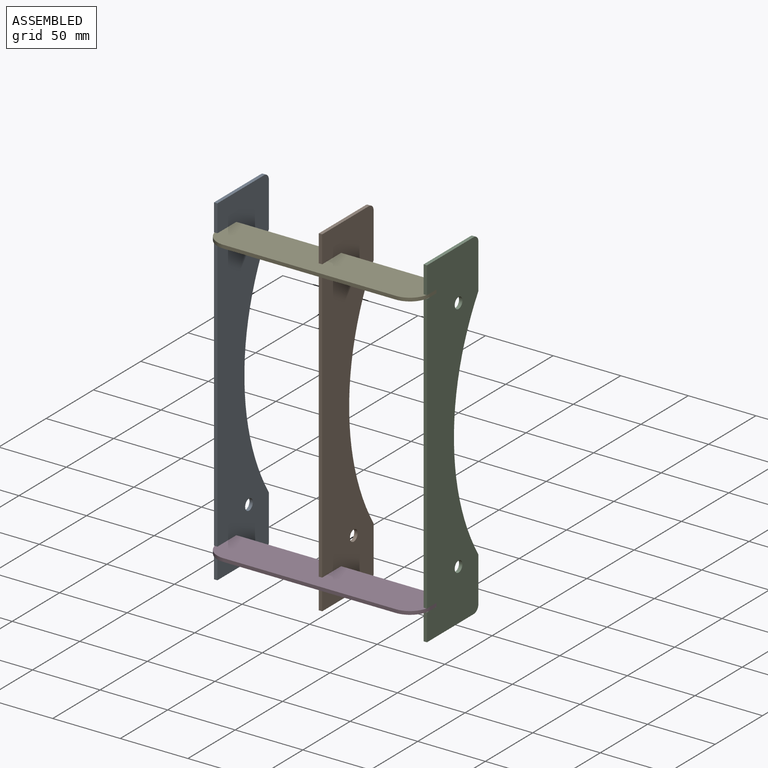
[diagram: assembled view]
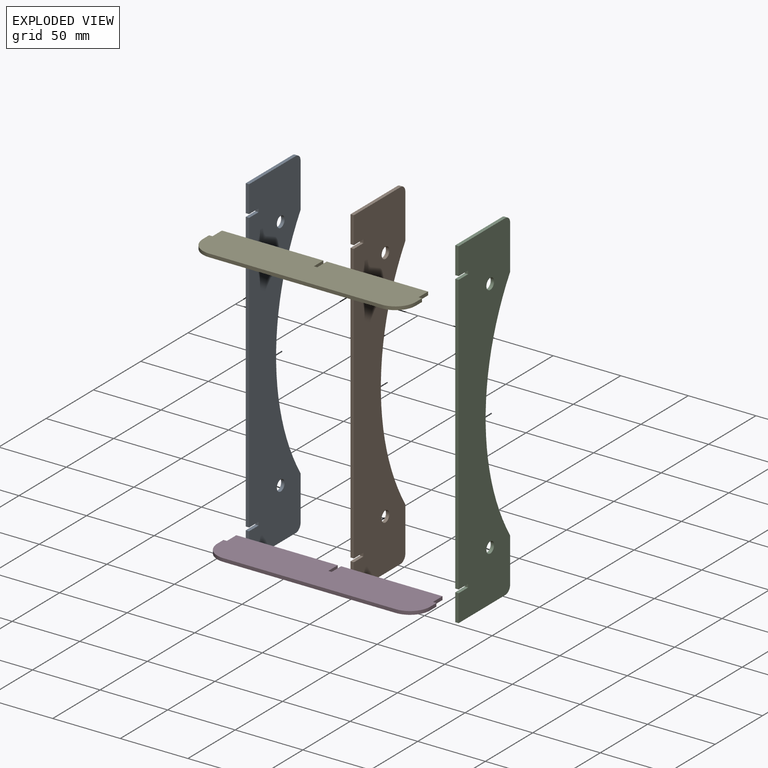
[diagram: exploded view]
GUIDED TOUR — FREECAD ASSEMBLY "Lasercut"

This assembly has 5 components, labeled P0..P4 below (a component is one placed body or linked part; the same part can appear more than once), held together by 6 modeled joints. A joint is a constraint between two components; its type names the relative motion it leaves free:
  FASTENED — locks the two components together rigidly (no relative motion).
Axis/direction vectors are unit vectors and 'through' points are millimeter coordinates, both in the assembly's world frame.

MATES
  1. FASTENED [Fixed] "Joint": P3 <-> P0, direction (0.000, 1.000, 0.000) through (-77.50, 21.50, 0.00) mm
  2. FASTENED [Fixed] "Joint001": P3 <-> P1, direction (0.000, 1.000, 0.000) through (0.00, 21.50, 0.00) mm
  3. FASTENED [Fixed] "Joint002": P2 <-> P3, direction (0.000, 1.000, 0.000) through (77.50, 21.50, 0.00) mm
  4. FASTENED [Fixed] "Joint003": P2 <-> P4, direction (0.000, 1.000, 0.000) through (77.50, 21.50, 209.50) mm
  5. FASTENED [Fixed] "Joint004": P1 <-> P4, direction (0.000, 1.000, 0.000) through (0.00, 21.50, 209.50) mm
  6. FASTENED [Fixed] "Joint005": P4 <-> P0, direction (0.000, 1.000, 0.000) through (-77.50, 21.50, 209.50) mm

ASSEMBLY ORDER
  1. P2 — the base component [order verified]
  2. P0 [order verified]
  3. P1 [order verified]
  4. P4 [order verified]
  5. P3 [order verified]
Order-tag legend:
  [order verified] — this step's position reverses a verified removal order: the component was checked to insert without passing through the ones already placed.

Of the 5 components, 5 carry a construction recipe — the FreeCAD feature program (sketches with constraints, then the solid features that consume them) that regenerates the part from scratch, quoted from this document or from the linked companion document it references; the rest are supplied as boundary geometry only. The tour below walks the components in assembly order: each is shown spotlighted twice — in the assembled view, then in the exploded view, where a leader line traces a displaced component back to its assembled socket (components that stay in place when exploded have no leader line; saturated green if recipe-attached, orange if geometry-only; every other component desaturated gray) — followed by its recipe or geometry summary and the mates that hold it.
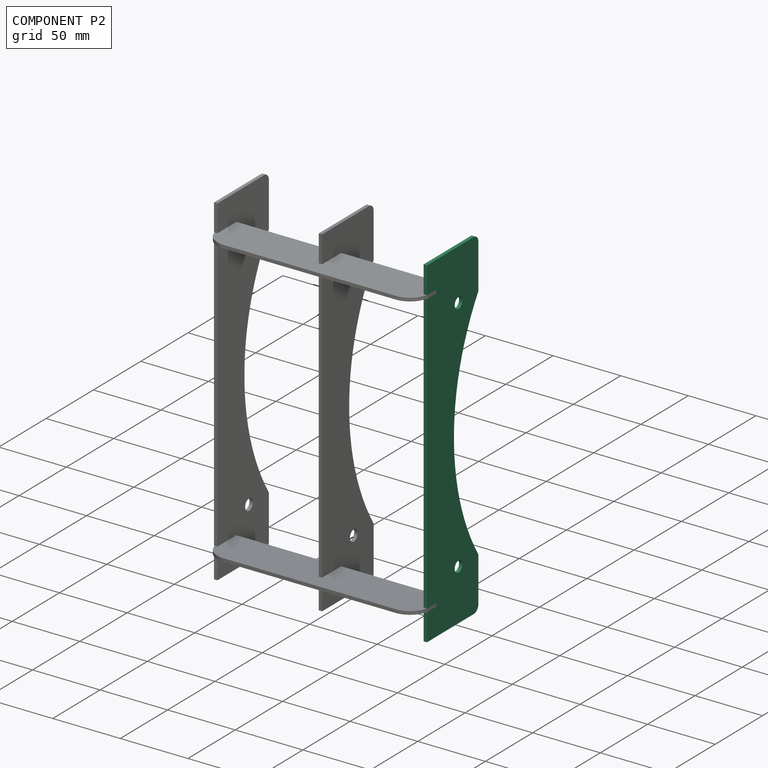
[diagram: component P2 — assembled]
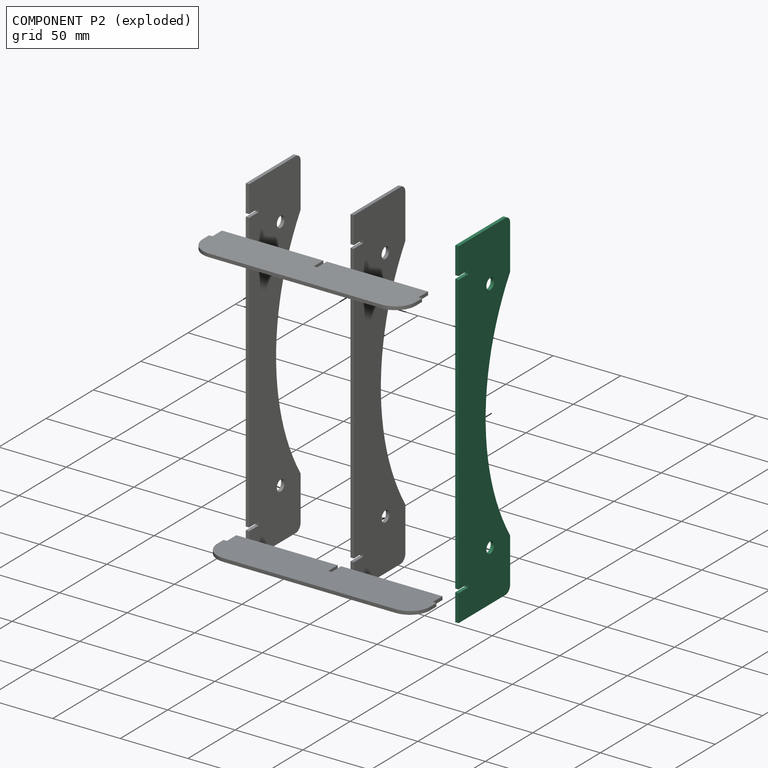
[diagram: component P2 — exploded]
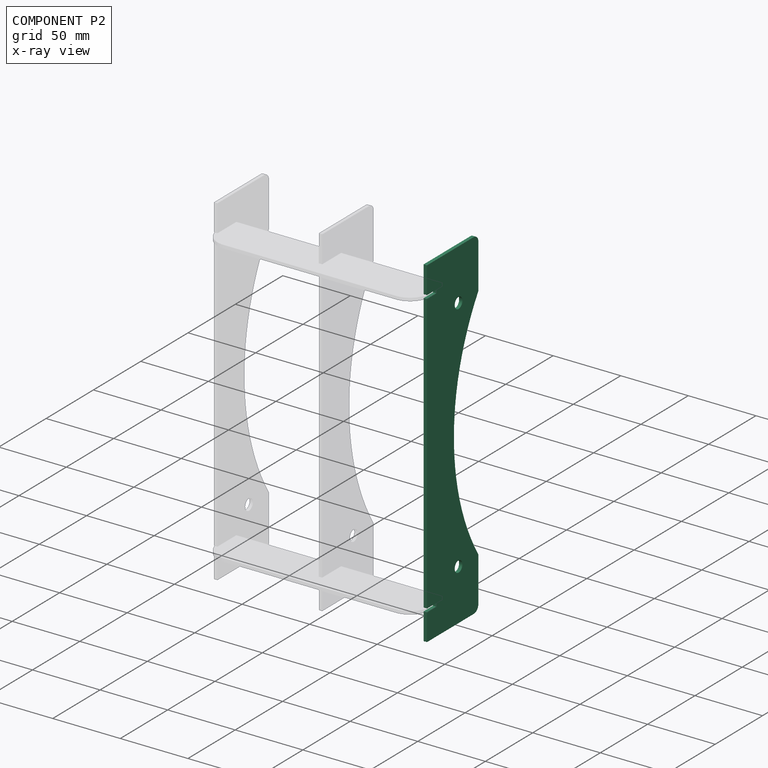
[diagram: component P2 — x-ray view]
COMPONENT P2 — same part as P0; its construction recipe is shown at P0.
Held by: FASTENED mate "Joint002" to P3; FASTENED mate "Joint003" to P4.
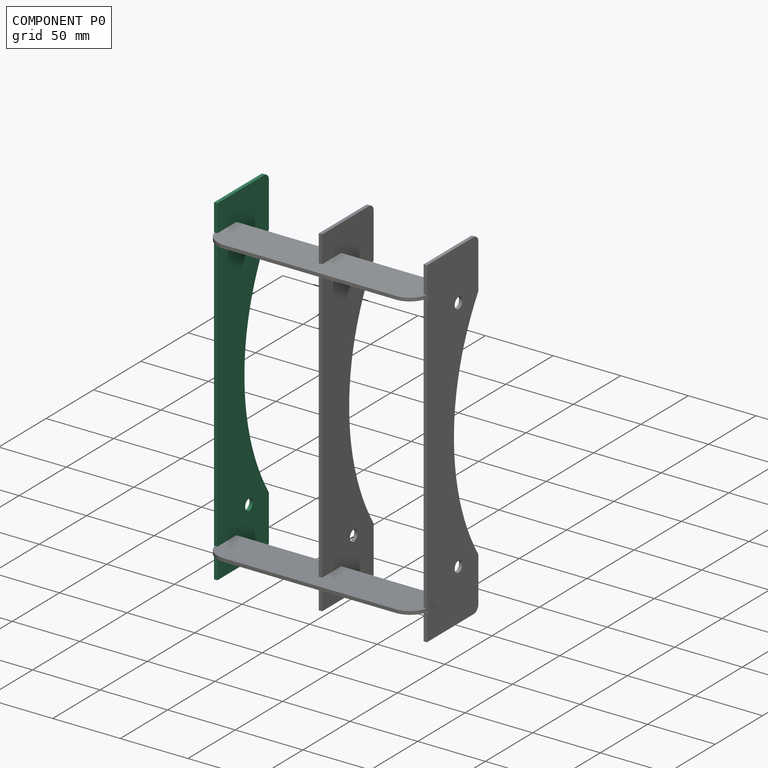
[diagram: component P0 — assembled]
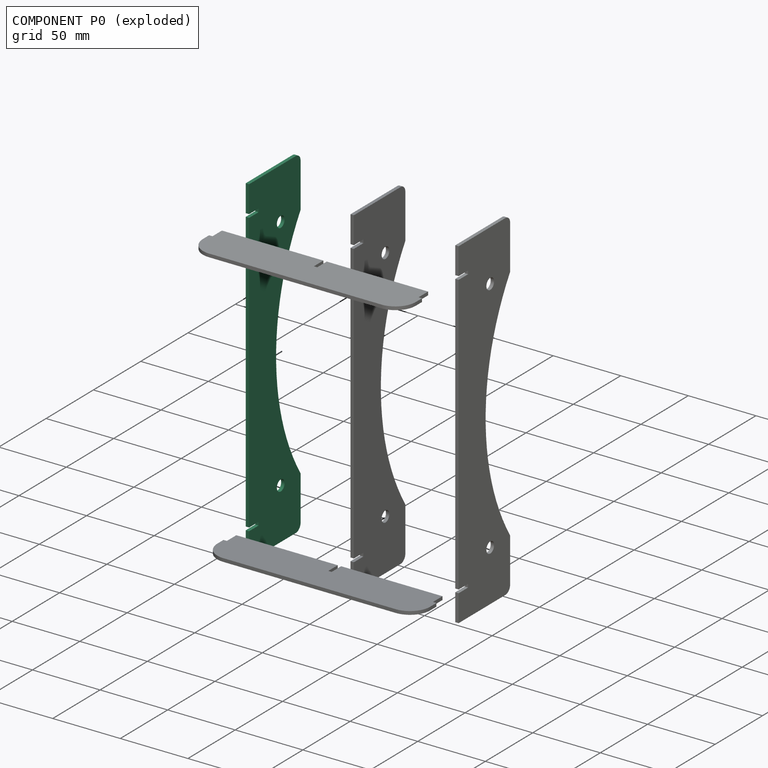
[diagram: component P0 — exploded]
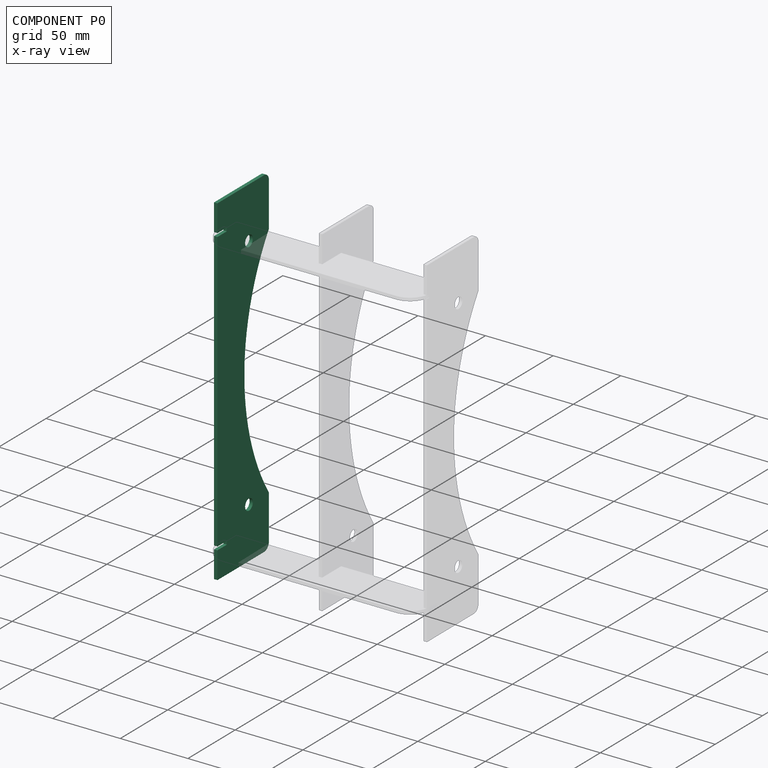
[diagram: component P0 — x-ray view]
COMPONENT P0 — recipe-attached ("GuardBody001", modeled in this document).
Held by: FASTENED mate "Joint" to P3; FASTENED mate "Joint005" to P4.
Construction recipe (the document's own serialized feature program — sketch geometry with constraints, then the solid features built on it; lengths are millimeters unless a unit is written):

FEATURE [Sketcher::SketchObject] Sketch001
  ArcFitTolerance = 1e-06
  AttachmentSupport = -> [YZ_Plane]
  ExternalGeometry = -> [BaseFeature]
  FullyConstrained = true
  MakeInternals = false
  MapMode = 5
  Placement = pos=(0,0,0) rot=(0.57735,0.57735,0.57735;2.0944rad)
  expr: Constraints[52] = <<config>>.dist
  expr: Constraints[55] = <<config>>.depth + <<config>>.clearance
  expr: Constraints[56] = <<config>>.thickness + <<config>>.clearance
  sketch-geometry (34):
    g0: Circle CenterX=44.8725 CenterY=88.1275 CenterZ=0 NormalX=0 NormalY=0 NormalZ=1 AngleXU=0 Radius=4.05
    g1: Circle CenterX=44.8725 CenterY=-88.1275 CenterZ=0 NormalX=0 NormalY=0 NormalZ=1 AngleXU=0 Radius=4.05
    g2: LineSegment [constr] StartX=50.8725 StartY=-126 StartZ=0 EndX=50.8725 EndY=120 EndZ=0
    g3: LineSegment [constr] StartX=50.8725 StartY=120 StartZ=0 EndX=11.5 EndY=120 EndZ=0
    g4: LineSegment StartX=50.8725 StartY=-126 StartZ=0 EndX=11.5 EndY=-126 EndZ=0
    g5: LineSegment [constr] StartX=50.8725 StartY=120 StartZ=0 EndX=65.8725 EndY=120 EndZ=0
    g6: LineSegment StartX=60.8725 StartY=-126 StartZ=0 EndX=50.8725 EndY=-126 EndZ=0
    g7: LineSegment StartX=65.8725 StartY=120 StartZ=0 EndX=65.8725 EndY=88.1275 EndZ=0
    g8: LineSegment [constr] StartX=65.8725 StartY=88.1275 StartZ=0 EndX=65.8725 EndY=-88.1275 EndZ=0
    g9: ArcOfCircle CenterX=203.027 CenterY=2.02e-14 CenterZ=0 NormalX=0 NormalY=0 NormalZ=1 AngleXU=0 Radius=163.027 StartAngle=2.57048 EndAngle=3.71271
    g10: LineSegment StartX=65.8725 StartY=-88.1275 StartZ=0 EndX=65.8725 EndY=-120 EndZ=0
    g11: LineSegment StartX=65.8725 StartY=-120 StartZ=0 EndX=65.8725 EndY=-121 EndZ=0
    g12: LineSegment [constr] StartX=11.5 StartY=-120 StartZ=0 EndX=65.8725 EndY=-120 EndZ=0
    g13: LineSegment [constr] StartX=65.8725 StartY=88.1275 StartZ=0 EndX=44.8725 EndY=88.1275 EndZ=0
    g14: GeomPoint [constr] X=40 Y=0 Z=0
    g15: GeomPoint [constr] X=65.8725 Y=120 Z=0
    g16: ArcOfCircle CenterX=60.8725 CenterY=-121 CenterZ=0 NormalX=0 NormalY=0 NormalZ=1 AngleXU=0 Radius=5 StartAngle=4.71239 EndAngle=6.28319
    g17: GeomPoint [constr] X=65.8725 Y=-126 Z=0
    g18: LineSegment StartX=11.5 StartY=106 StartZ=0 EndX=21.5 EndY=106 EndZ=0
    g19: LineSegment StartX=21.5 StartY=106 StartZ=0 EndX=21.5 EndY=103.5 EndZ=0
    g20: LineSegment StartX=21.5 StartY=103.5 StartZ=0 EndX=11.5 EndY=103.5 EndZ=0
    g21: LineSegment StartX=11.5 StartY=-103.5 StartZ=0 EndX=21.5 EndY=-103.5 EndZ=0
    g22: LineSegment StartX=21.5 StartY=-103.5 StartZ=0 EndX=21.5 EndY=-106 EndZ=0
    g23: LineSegment StartX=21.5 StartY=-106 StartZ=0 EndX=11.5 EndY=-106 EndZ=0
    g24: LineSegment StartX=11.5 StartY=120 StartZ=0 EndX=11.5 EndY=106 EndZ=0
    g25: LineSegment [constr] StartX=11.5 StartY=106 StartZ=0 EndX=11.5 EndY=103.5 EndZ=0
    g26: LineSegment StartX=11.5 StartY=103.5 StartZ=0 EndX=11.5 EndY=-103.5 EndZ=0
    g27: LineSegment [constr] StartX=11.5 StartY=-103.5 StartZ=0 EndX=11.5 EndY=-106 EndZ=0
    g28: LineSegment StartX=11.5 StartY=-106 StartZ=0 EndX=11.5 EndY=-126 EndZ=0
    g29: LineSegment StartX=11.5 StartY=120 StartZ=0 EndX=11.5 EndY=126 EndZ=0
    g30: LineSegment StartX=11.5 StartY=126 StartZ=0 EndX=60.8725 EndY=126 EndZ=0
    g31: LineSegment StartX=65.8725 StartY=121 StartZ=0 EndX=65.8725 EndY=120 EndZ=0
    g32: ArcOfCircle CenterX=60.8725 CenterY=121 CenterZ=0 NormalX=0 NormalY=0 NormalZ=1 AngleXU=0 Radius=5 StartAngle=8e-16 EndAngle=1.5708
    g33: GeomPoint [constr] X=65.8725 Y=126 Z=0
  constraints (88):
    c: Coincident(g0,g-3)
    c: PointOnObject(g-3,g0)
    c: Coincident(g1,g-4)
    c: PointOnObject(g-4,g1)
    c: Coincident(g2,g3)
    c: Coincident(g3,g24)
    c: Vertical(g2)
    c: Horizontal(g3)
    c: Coincident(g24,g-7)
    c: Horizontal(g4)
    c: PointOnObject(g-5,g2)
    c: Coincident(g2,g4)
    c: Coincident(g28,g4)
    c: DistanceY(g28,g-8) = 6
    c: Coincident(g2,g5)
    c: Horizontal(g5)
    c: Coincident(g6,g2)
    c: Horizontal(g6)
    c: Coincident(g7,g8)
    c: Vertical(g7)
    c: Coincident(g8,g10)
    c: Vertical(g8)
    c: Coincident(g9,g7)
    c: Coincident(g9,g8)
    c: Coincident(g10,g11)
    c: Vertical(g10)
    c: Vertical(g11)
    c: Coincident(g12,g-8)
    c: Coincident(g12,g10)
    c: Horizontal(g12)
    c: DistanceX(g5,g15) = 15
    c: Coincident(g13,g7)
    c: Coincident(g13,g0)
    c: Horizontal(g13)
    c: PointOnObject(g14,g-1)
    c: PointOnObject(g14,g9)
    c: DistanceX(g-1,g14) = 40
    c: PointOnObject(g17,g11)
    c: PointOnObject(g17,g6)
    c: Tangent(g11,g16) = 1.5708
    c: Tangent(g6,g16) = 1.5708
    c: Equal(g10,g7)
    c: Horizontal(g18)
    c: Coincident(g19,g18)
    c: Vertical(g19)
    c: Horizontal(g20)
    c: Coincident(g20,g19)
    c: Horizontal(g21)
    c: Coincident(g21,g22)
    c: Vertical(g22)
    c: Coincident(g22,g23)
    c: Horizontal(g23)
    c: DistanceY(g28,g23) = 20
    c: Equal(g19,g22)
    c: Equal(g21,g20)
    c: DistanceX(g18,g18) = 10
    c: DistanceY(g19,g19) = 2.5
    c: Coincident(g24,g25)
    c: Vertical(g24)
    c: PointOnObject(g18,g24)
    c: PointOnObject(g20,g24)
    c: Coincident(g25,g26)
    c: Vertical(g25)
    c: Coincident(g26,g27)
    c: Vertical(g26)
    c: Coincident(g27,g28)
    c: Vertical(g27)
    c: Vertical(g28)
    c: PointOnObject(g23,g27)
    c: PointOnObject(g26,g21)
    c: PointOnObject(g27,g23)
    c: PointOnObject(g25,g20)
    c: PointOnObject(g24,g18)
    c: Coincident(g5,g15)
    c: Coincident(g7,g5)
    c: Radius(g16) = 5
    c: Coincident(g3,g29)
    c: Coincident(g29,g30)
    c: Horizontal(g30)
    c: Coincident(g31,g5)
    c: Vertical(g31)
    c: PointOnObject(g33,g30)
    c: PointOnObject(g33,g31)
    c: Tangent(g30,g32) = 1.5708
    c: Tangent(g31,g32) = 1.5708
    c: Equal(g32,g16)
    c: Symmetric(g29,g4,g-1)
    c: Symmetric(g21,g20,g-1)
FEATURE [PartDesign::Pad] Pad
  Direction = (1,0,0)
  Length = 2.5
  Length2 = 10
  Midplane = true
  Placement = pos=(0,0,0) rot=(1,1,1;2.0944rad)
  Profile = -> Sketch001
  ReferenceAxis = -> Sketch001 [N_Axis]
  Refine = true
  Suppressed = false
  Type = 0
  expr: Length = <<config>>.thickness
FEATURE [PartDesign::Body] Body  label="GuardBody"
  AllowCompound = false
  Group = -> [Sketch001,Pad]
  Origin = -> Origin
  Tip = -> Pad
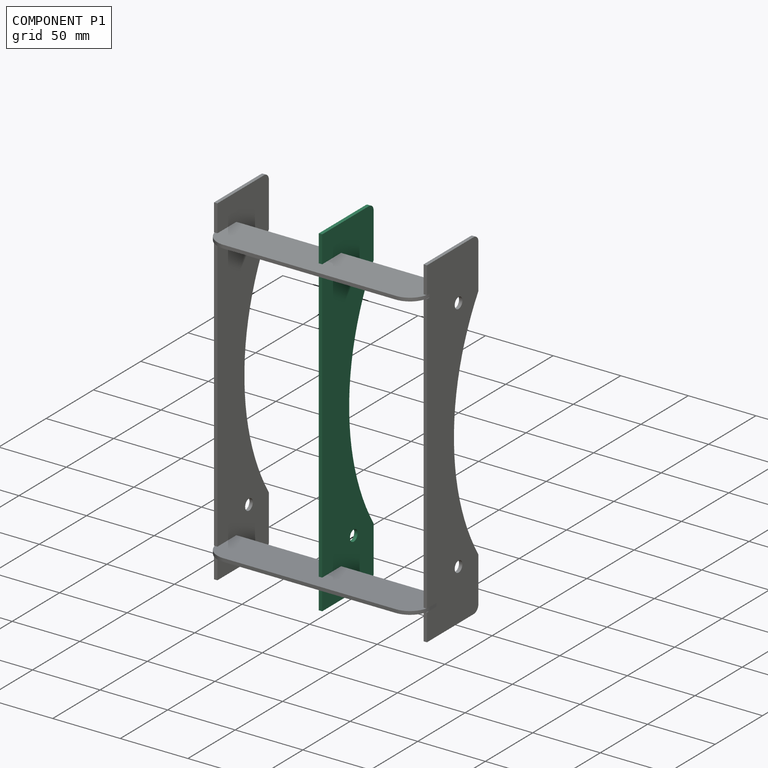
[diagram: component P1 — assembled]
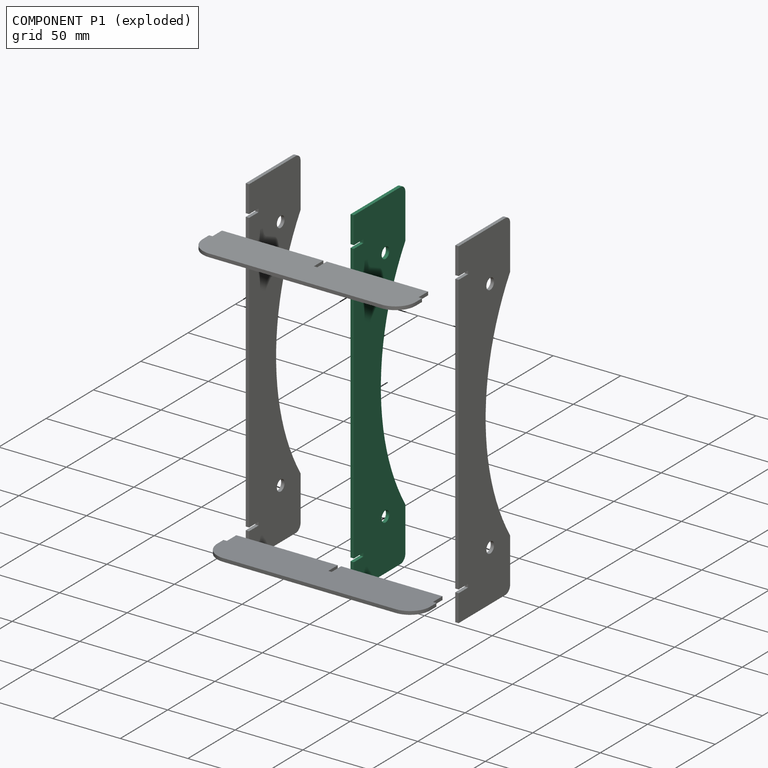
[diagram: component P1 — exploded]
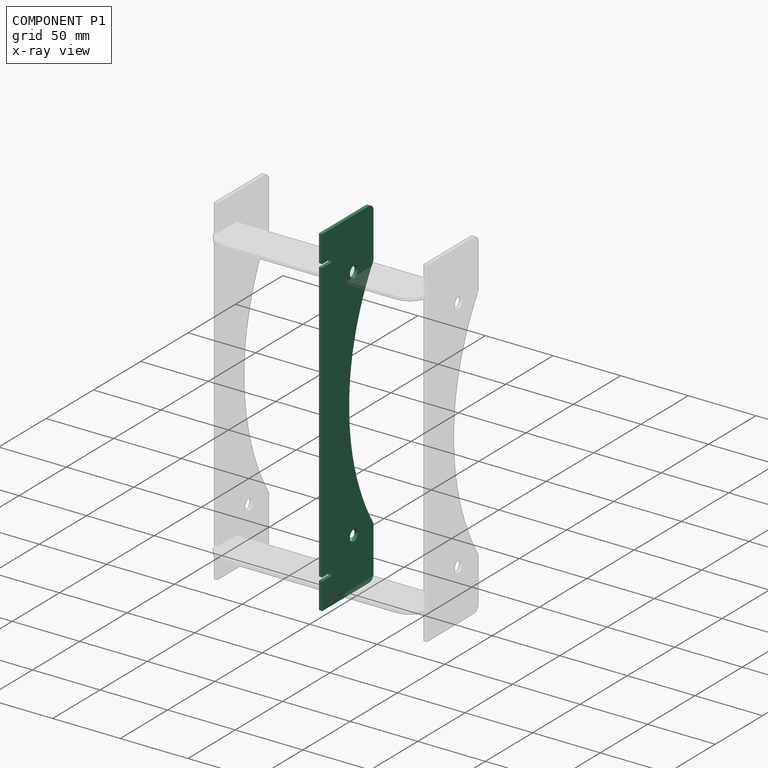
[diagram: component P1 — x-ray view]
COMPONENT P1 — same part as P0; its construction recipe is shown at P0.
Held by: FASTENED mate "Joint001" to P3; FASTENED mate "Joint004" to P4.
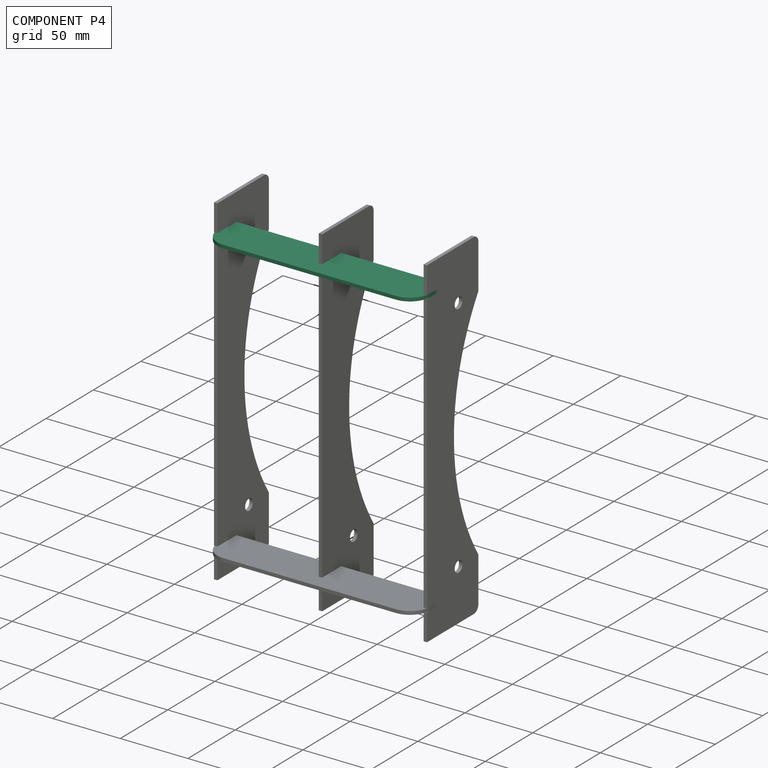
[diagram: component P4 — assembled]
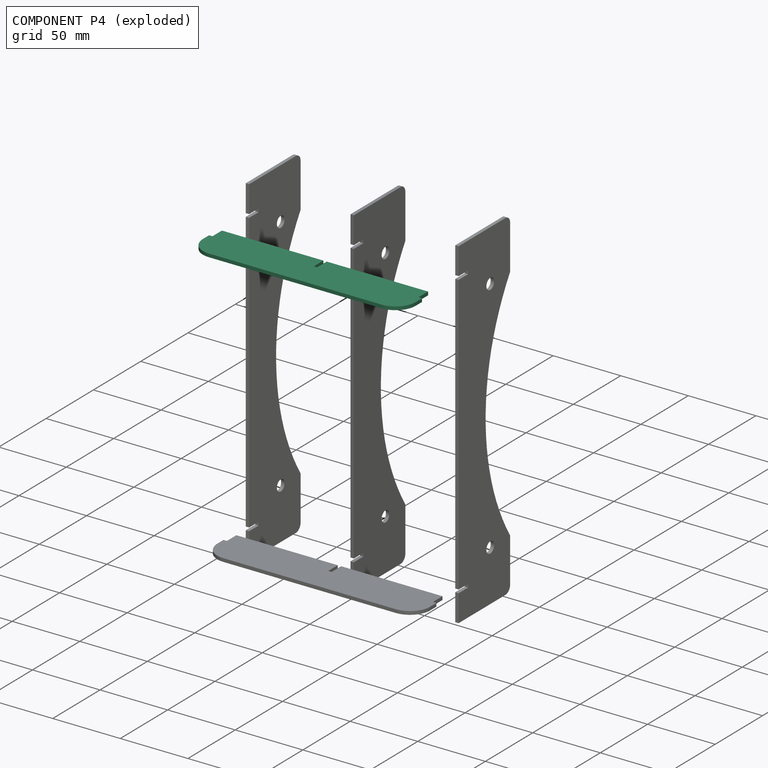
[diagram: component P4 — exploded]
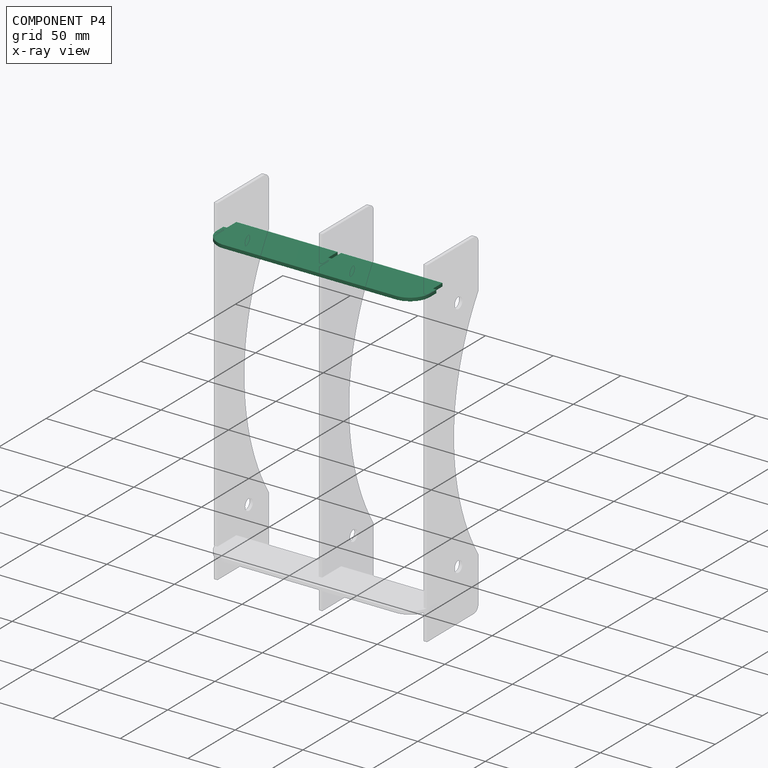
[diagram: component P4 — x-ray view]
COMPONENT P4 — same part as P3; its construction recipe is shown at P3.
Held by: FASTENED mate "Joint003" to P2; FASTENED mate "Joint004" to P1; FASTENED mate "Joint005" to P0.
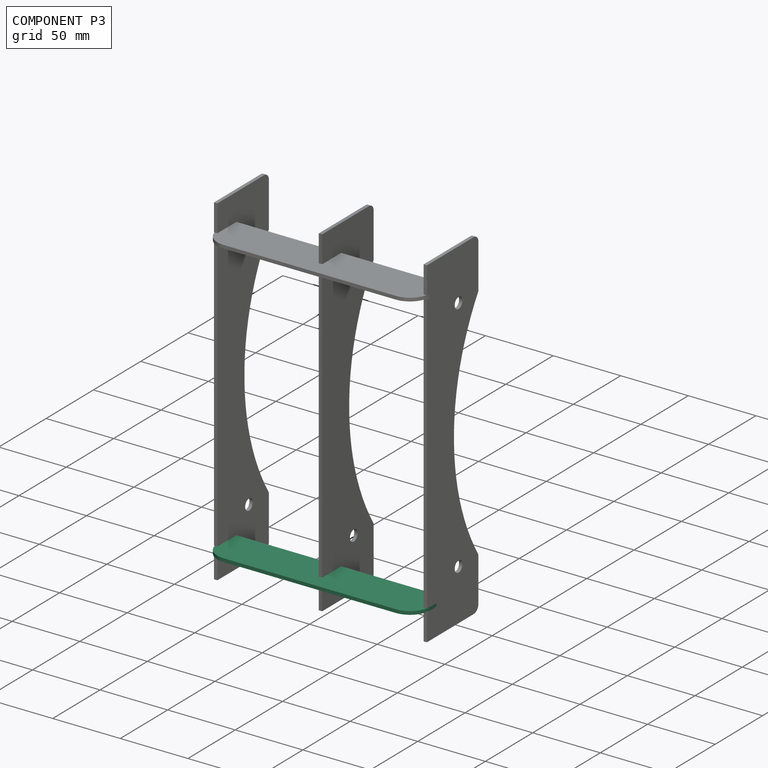
[diagram: component P3 — assembled]
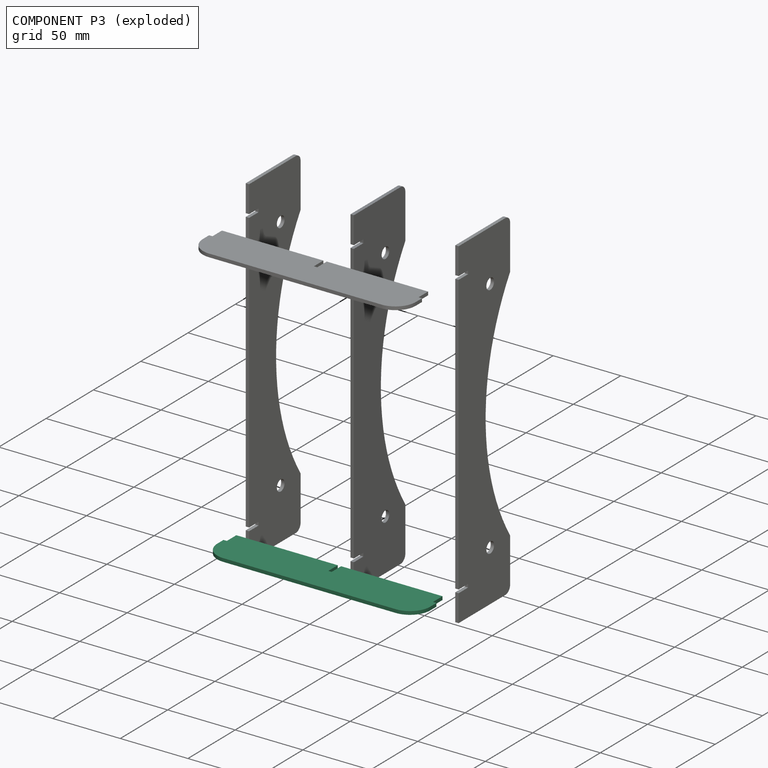
[diagram: component P3 — exploded]
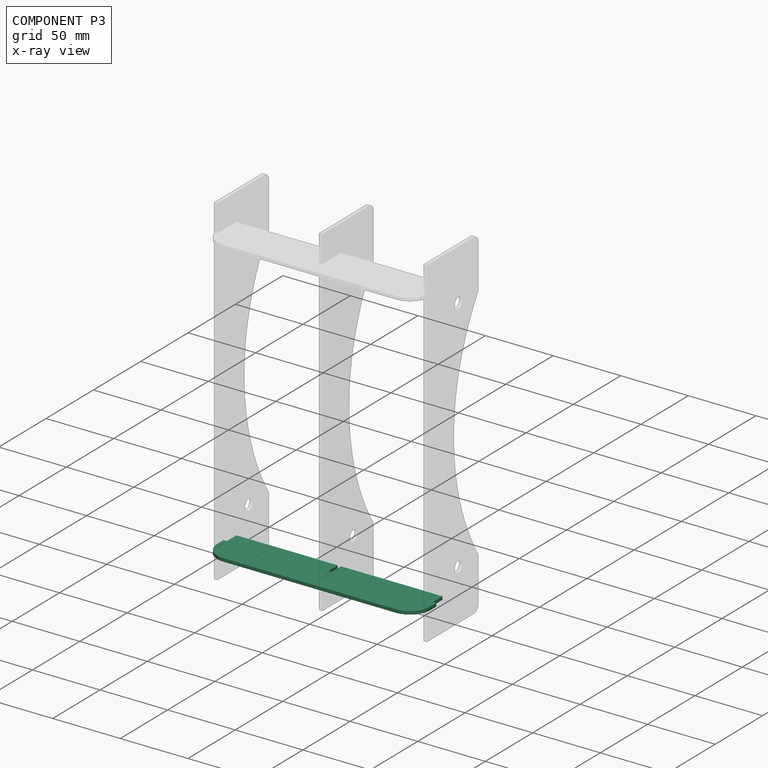
[diagram: component P3 — x-ray view]
COMPONENT P3 — recipe-attached ("JointBody001", modeled in this document).
Held by: FASTENED mate "Joint" to P0; FASTENED mate "Joint001" to P1; FASTENED mate "Joint002" to P2.
Construction recipe (the document's own serialized feature program — sketch geometry with constraints, then the solid features built on it; lengths are millimeters unless a unit is written):

FEATURE [PartDesign::SubShapeBinder] Binder
  BindCopyOnChange = 0
  BindMode = 0
  ClaimChildren = false
  Context = -> Body002 [Binder.]
  Fuse = false
  MakeFace = true
  OffsetFill = false
  OffsetIntersection = false
  OffsetJoinType = 0
  OffsetOpenResult = false
  PartialLoad = false
  Refine = true
  Relative = true
  Support = -> [Body]
  _Version = 2
FEATURE [Sketcher::SketchObject] Sketch002
  ArcFitTolerance = 1e-06
  AttachmentSupport = -> [XY_Plane]
  ExternalGeometry = -> [Binder]
  FullyConstrained = true
  MakeInternals = false
  MapMode = 5
  expr: Constraints[19] = <<config>>.thickness
  expr: Constraints[20] = <<config>>.depth
  expr: Constraints[31] = <<config>>.depth
  expr: Constraints[35] = <<config>>.roller_length + 2 * <<config>>.roller_clearance
  expr: Constraints[9] = <<config>>.thickness
  sketch-geometry (18):
    g0: LineSegment StartX=-63.75 StartY=0 StartZ=0 EndX=63.75 EndY=1.8e-15 EndZ=0
    g1: LineSegment StartX=1.25 StartY=21.5 StartZ=0 EndX=1.25 EndY=31.5 EndZ=0
    g2: LineSegment [constr] StartX=1.25 StartY=31.5 StartZ=0 EndX=-1.25 EndY=31.5 EndZ=0
    g3: LineSegment StartX=-1.25 StartY=31.5 StartZ=0 EndX=-1.25 EndY=21.5 EndZ=0
    g4: LineSegment StartX=-1.25 StartY=21.5 StartZ=0 EndX=1.25 EndY=21.5 EndZ=0
    g5: GeomPoint [constr] X=0 Y=26.5 Z=0
    g6: LineSegment StartX=-78.75 StartY=21.5 StartZ=0 EndX=-78.75 EndY=15 EndZ=0
    g7: LineSegment StartX=78.75 StartY=15 StartZ=0 EndX=78.75 EndY=21.5 EndZ=0
    g8: LineSegment StartX=-78.75 StartY=21.5 StartZ=0 EndX=-76.25 EndY=21.5 EndZ=0
    g9: LineSegment StartX=-76.25 StartY=21.5 StartZ=0 EndX=-76.25 EndY=31.5 EndZ=0
    g10: LineSegment StartX=76.25 StartY=31.5 StartZ=0 EndX=76.25 EndY=21.5 EndZ=0
    g11: LineSegment StartX=76.25 StartY=21.5 StartZ=0 EndX=78.75 EndY=21.5 EndZ=0
    g12: LineSegment StartX=1.25 StartY=31.5 StartZ=0 EndX=76.25 EndY=31.5 EndZ=0
    g13: LineSegment StartX=-1.25 StartY=31.5 StartZ=0 EndX=-76.25 EndY=31.5 EndZ=0
    g14: ArcOfCircle CenterX=-63.75 CenterY=15 CenterZ=0 NormalX=0 NormalY=0 NormalZ=1 AngleXU=0 Radius=15 StartAngle=3.14159 EndAngle=4.71239
    g15: GeomPoint [constr] X=-78.75 Y=0 Z=0
    g16: ArcOfCircle CenterX=63.75 CenterY=15 CenterZ=0 NormalX=0 NormalY=0 NormalZ=1 AngleXU=0 Radius=15 StartAngle=4.71239 EndAngle=6.28319
    g17: GeomPoint [constr] X=78.75 Y=0 Z=0
  constraints (46):
    c: Coincident(g1,g2)
    c: Coincident(g2,g3)
    c: Coincident(g3,g4)
    c: Coincident(g4,g1)
    c: Vertical(g1)
    c: Vertical(g3)
    c: Horizontal(g2)
    c: Horizontal(g4)
    c: Symmetric(g3,g1,g5)
    c: DistanceX(g4,g4) = 2.5
    c: Vertical(g6)
    c: Vertical(g7)
    c: Horizontal(g8)
    c: Coincident(g8,g9)
    c: Vertical(g9)
    c: Vertical(g10)
    c: Coincident(g10,g11)
    c: Coincident(g11,g7)
    c: Horizontal(g11)
    c: DistanceX(g11,g11) = 2.5
    c: DistanceY(g10,g10) = 10
    c: Equal(g8,g11)
    c: Equal(g9,g10)
    c: Coincident(g12,g1)
    c: Coincident(g13,g2)
    c: Horizontal(g13)
    c: Coincident(g13,g9)
    c: Coincident(g8,g6)
    c: Coincident(g12,g10)
    c: Horizontal(g12)
    c: PointOnObject(g5,g-2)
    c: DistanceY(g1,g1) = 10
    c: Symmetric(g15,g17,g-2)
    c: PointOnObject(g15,g-1)
    c: PointOnObject(g-4,g4)
    c: DistanceX(g13,g13) = 75
    c: PointOnObject(g15,g6)
    c: PointOnObject(g15,g0)
    c: Tangent(g6,g14) = -1.5708
    c: Tangent(g0,g14) = -1.5708
    c: PointOnObject(g17,g0)
    c: PointOnObject(g17,g7)
    c: Tangent(g0,g16) = -1.5708
    c: Tangent(g7,g16) = -1.5708
    c: Equal(g16,g14)
    c: Radius(g14) = 15
FEATURE [PartDesign::Pad] Pad001
  Direction = (0,0,1)
  Length = 2.5
  Length2 = 10
  Midplane = true
  Profile = -> Sketch002
  ReferenceAxis = -> Sketch002 [N_Axis]
  Refine = true
  Suppressed = false
  Type = 0
  expr: Length = <<config>>.thickness
FEATURE [PartDesign::Body] Body002  label="JointBody"
  AllowCompound = false
  Group = -> [Sketch002,Binder,Pad001]
  Origin = -> Origin002
  Tip = -> Pad001
PROVENANCE & LICENSES
Assembly and component geometry: a FreeCAD (.FCStd) document from a public repository crawl; components, placements and joints were extracted with FreeCAD and each solid tessellated.
Construction recipes: the document's own serialized feature recipes (and, for linked parts, the recipes of companion documents from the same project).
License: as declared in the source repository (recorded in the dataset sidecar).
Joints: native FreeCAD joints and A2plus constraints are mapped to standard mate types.
Verification: 5 of this assembly's 5 components carry a construction recipe (5 from this document itself); the rest are geometry-only. Every component's tessellation passed the extraction mesh gates (mesh-volume checksum against the B-rep where available, bounding-box inflation <= 2%).
Renders: orthographic iso camera (az 35 / el 25); the floor grid conveys scale (grid pitch printed in each image; no ruler). In the exploded view each component is displaced by its stored offset vector: the offsets alone carry the explosion direction (mate normal/axis signs are not orientation cues and do not encode it), and separation distances are assigned per mate-chain, not proportionally to assembly-order depth.
